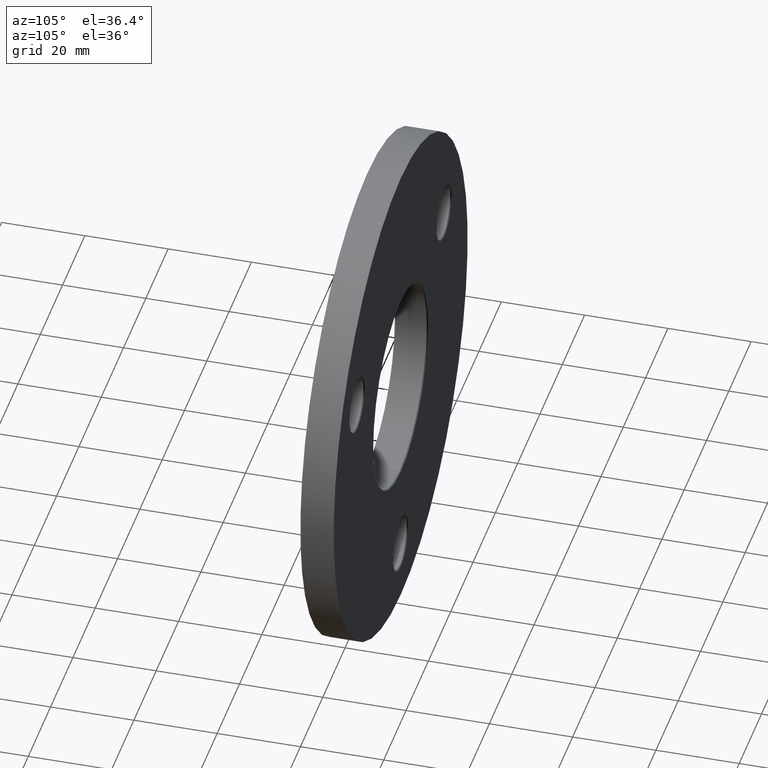
[diagram: clean part render]
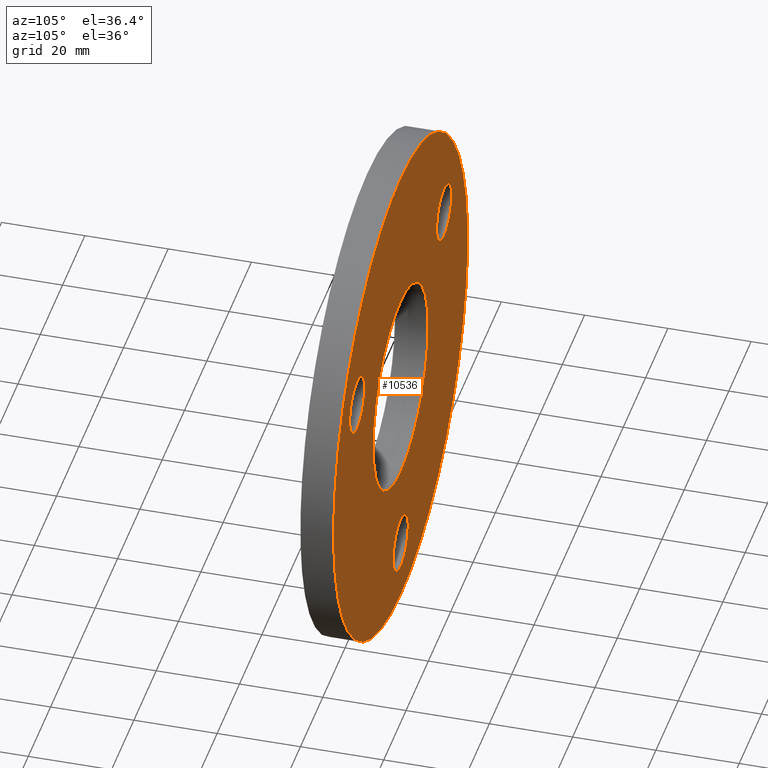
[diagram: same view with one face highlighted and labeled with its STEP entity id]
A machine part, auxiliary view. The second image highlights one B-rep face of the part: STEP entity #10536.
In plain terms, the highlighted planar face has unit normal (0, 1, 0).
Its self-contained STEP definition (entity closure, byte-faithful):
#160 = EDGE_LOOP ( 'NONE', ( #13259, #6067 ) ) ;
#218 = VERTEX_POINT ( 'NONE', #2078 ) ;
#257 = CARTESIAN_POINT ( 'NONE',  ( 38.97114317029974728, 8.000000000000000000, 29.25000000000003197 ) ) ;
#303 = FACE_BOUND ( 'NONE', #1975, .T. ) ;
#555 = DIRECTION ( 'NONE',  ( 0.000000000000000000, 0.000000000000000000, 1.000000000000000000 ) ) ;
#644 = DIRECTION ( 'NONE',  ( -0.000000000000000000, -1.000000000000000000, -0.000000000000000000 ) ) ;
#1186 = ORIENTED_EDGE ( 'NONE', *, *, #4586, .T. ) ;
#1292 = CIRCLE ( 'NONE', #9086, 24.60000000000001208 ) ;
#1337 = ORIENTED_EDGE ( 'NONE', *, *, #8720, .T. ) ;
#1714 = DIRECTION ( 'NONE',  ( -0.000000000000000000, -1.000000000000000000, -0.000000000000000000 ) ) ;
#1811 = CIRCLE ( 'NONE', #12642, 6.750000000000033751 ) ;
#1822 = AXIS2_PLACEMENT_3D ( 'NONE', #11811, #7621, #10829 ) ;
#1894 = DIRECTION ( 'NONE',  ( 0.000000000000000000, 0.000000000000000000, 1.000000000000000000 ) ) ;
#1926 = CARTESIAN_POINT ( 'NONE',  ( 0.000000000000000000, 8.000000000000000000, -45.00000000000000000 ) ) ;
#1941 = CIRCLE ( 'NONE', #12902, 6.750000000000033751 ) ;
#1975 = EDGE_LOOP ( 'NONE', ( #1337, #7029 ) ) ;
#2078 = CARTESIAN_POINT ( 'NONE',  ( 38.97114317029974728, 8.000000000000000000, 15.74999999999996625 ) ) ;
#2281 = AXIS2_PLACEMENT_3D ( 'NONE', #4577, #3531, #2429 ) ;
#2429 = DIRECTION ( 'NONE',  ( 0.000000000000000000, -0.000000000000000000, 1.000000000000000000 ) ) ;
#2501 = CIRCLE ( 'NONE', #1822, 60.00000000000000000 ) ;
#2978 = DIRECTION ( 'NONE',  ( 0.000000000000000000, 0.000000000000000000, 1.000000000000000000 ) ) ;
#3308 = AXIS2_PLACEMENT_3D ( 'NONE', #5045, #5094, #5980 ) ;
#3380 = VERTEX_POINT ( 'NONE', #4708 ) ;
#3448 = ORIENTED_EDGE ( 'NONE', *, *, #4710, .T. ) ;
#3488 = AXIS2_PLACEMENT_3D ( 'NONE', #13132, #6974, #10117 ) ;
#3531 = DIRECTION ( 'NONE',  ( 0.000000000000000000, 1.000000000000000000, 0.000000000000000000 ) ) ;
#3719 = FACE_BOUND ( 'NONE', #7849, .T. ) ;
#3914 = CIRCLE ( 'NONE', #3308, 24.60000000000001208 ) ;
#4071 = VERTEX_POINT ( 'NONE', #5741 ) ;
#4115 = AXIS2_PLACEMENT_3D ( 'NONE', #8830, #6812, #7954 ) ;
#4435 = VERTEX_POINT ( 'NONE', #7751 ) ;
#4489 = PLANE ( 'NONE',  #2281 ) ;
#4577 = CARTESIAN_POINT ( 'NONE',  ( 0.000000000000000000, 8.000000000000000000, 0.000000000000000000 ) ) ;
#4586 = EDGE_CURVE ( 'NONE', #5088, #4817, #1292, .T. ) ;
#4699 = DIRECTION ( 'NONE',  ( 0.000000000000000000, 1.000000000000000000, 0.000000000000000000 ) ) ;
#4708 = CARTESIAN_POINT ( 'NONE',  ( -38.97114317029973307, 8.000000000000000000, 29.25000000000005329 ) ) ;
#4710 = EDGE_CURVE ( 'NONE', #4817, #5088, #3914, .T. ) ;
#4726 = EDGE_CURVE ( 'NONE', #218, #11201, #6492, .T. ) ;
#4817 = VERTEX_POINT ( 'NONE', #10421 ) ;
#5045 = CARTESIAN_POINT ( 'NONE',  ( 0.000000000000000000, 8.000000000000000000, 0.000000000000000000 ) ) ;
#5088 = VERTEX_POINT ( 'NONE', #7994 ) ;
#5093 = DIRECTION ( 'NONE',  ( -0.000000000000000000, -1.000000000000000000, -0.000000000000000000 ) ) ;
#5094 = DIRECTION ( 'NONE',  ( -0.000000000000000000, -1.000000000000000000, -0.000000000000000000 ) ) ;
#5260 = EDGE_LOOP ( 'NONE', ( #5894, #9468 ) ) ;
#5477 = VERTEX_POINT ( 'NONE', #9087 ) ;
#5718 = VERTEX_POINT ( 'NONE', #9456 ) ;
#5741 = CARTESIAN_POINT ( 'NONE',  ( 0.000000000000000000, 8.000000000000000000, -60.00000000000000000 ) ) ;
#5849 = AXIS2_PLACEMENT_3D ( 'NONE', #12923, #4699, #10787 ) ;
#5894 = ORIENTED_EDGE ( 'NONE', *, *, #6362, .T. ) ;
#5980 = DIRECTION ( 'NONE',  ( 0.000000000000000000, 0.000000000000000000, 1.000000000000000000 ) ) ;
#6067 = ORIENTED_EDGE ( 'NONE', *, *, #8526, .T. ) ;
#6079 = CARTESIAN_POINT ( 'NONE',  ( -38.97114317029973307, 8.000000000000000000, 22.50000000000002132 ) ) ;
#6362 = EDGE_CURVE ( 'NONE', #3380, #5718, #1811, .T. ) ;
#6492 = CIRCLE ( 'NONE', #3488, 6.750000000000033751 ) ;
#6566 = ORIENTED_EDGE ( 'NONE', *, *, #8236, .T. ) ;
#6641 = EDGE_LOOP ( 'NONE', ( #6566, #8281 ) ) ;
#6772 = FACE_BOUND ( 'NONE', #5260, .T. ) ;
#6812 = DIRECTION ( 'NONE',  ( -0.000000000000000000, -1.000000000000000000, -0.000000000000000000 ) ) ;
#6935 = EDGE_CURVE ( 'NONE', #5477, #4435, #1941, .T. ) ;
#6974 = DIRECTION ( 'NONE',  ( -0.000000000000000000, -1.000000000000000000, -0.000000000000000000 ) ) ;
#7029 = ORIENTED_EDGE ( 'NONE', *, *, #4726, .T. ) ;
#7066 = CARTESIAN_POINT ( 'NONE',  ( 38.97114317029974728, 8.000000000000000000, 22.50000000000000000 ) ) ;
#7370 = CARTESIAN_POINT ( 'NONE',  ( 7.347880794884118356E-15, 8.000000000000000000, 60.00000000000000000 ) ) ;
#7437 = FACE_BOUND ( 'NONE', #160, .T. ) ;
#7598 = VERTEX_POINT ( 'NONE', #7370 ) ;
#7621 = DIRECTION ( 'NONE',  ( 0.000000000000000000, 1.000000000000000000, 0.000000000000000000 ) ) ;
#7625 = CIRCLE ( 'NONE', #7744, 6.750000000000033751 ) ;
#7744 = AXIS2_PLACEMENT_3D ( 'NONE', #7066, #5093, #12236 ) ;
#7751 = CARTESIAN_POINT ( 'NONE',  ( 8.266365894244675749E-16, 8.000000000000000000, -51.75000000000003553 ) ) ;
#7786 = EDGE_CURVE ( 'NONE', #5718, #3380, #10022, .T. ) ;
#7849 = EDGE_LOOP ( 'NONE', ( #1186, #3448 ) ) ;
#7889 = DIRECTION ( 'NONE',  ( 0.000000000000000000, 0.000000000000000000, 1.000000000000000000 ) ) ;
#7948 = CIRCLE ( 'NONE', #11157, 6.750000000000033751 ) ;
#7954 = DIRECTION ( 'NONE',  ( 0.000000000000000000, 0.000000000000000000, 1.000000000000000000 ) ) ;
#7994 = CARTESIAN_POINT ( 'NONE',  ( 0.000000000000000000, 8.000000000000000000, 24.60000000000001208 ) ) ;
#8107 = DIRECTION ( 'NONE',  ( -0.000000000000000000, -1.000000000000000000, -0.000000000000000000 ) ) ;
#8236 = EDGE_CURVE ( 'NONE', #4071, #7598, #9386, .T. ) ;
#8281 = ORIENTED_EDGE ( 'NONE', *, *, #13318, .T. ) ;
#8526 = EDGE_CURVE ( 'NONE', #4435, #5477, #7948, .T. ) ;
#8720 = EDGE_CURVE ( 'NONE', #11201, #218, #7625, .T. ) ;
#8811 = CARTESIAN_POINT ( 'NONE',  ( 0.000000000000000000, 8.000000000000000000, 0.000000000000000000 ) ) ;
#8830 = CARTESIAN_POINT ( 'NONE',  ( -38.97114317029973307, 8.000000000000000000, 22.50000000000002132 ) ) ;
#9086 = AXIS2_PLACEMENT_3D ( 'NONE', #8811, #644, #7889 ) ;
#9087 = CARTESIAN_POINT ( 'NONE',  ( 0.000000000000000000, 8.000000000000000000, -38.24999999999996447 ) ) ;
#9162 = DIRECTION ( 'NONE',  ( -0.000000000000000000, -1.000000000000000000, -0.000000000000000000 ) ) ;
#9386 = CIRCLE ( 'NONE', #5849, 60.00000000000000000 ) ;
#9456 = CARTESIAN_POINT ( 'NONE',  ( -38.97114317029973307, 8.000000000000000000, 15.74999999999998579 ) ) ;
#9468 = ORIENTED_EDGE ( 'NONE', *, *, #7786, .T. ) ;
#9940 = CARTESIAN_POINT ( 'NONE',  ( 0.000000000000000000, 8.000000000000000000, -45.00000000000000000 ) ) ;
#10022 = CIRCLE ( 'NONE', #4115, 6.750000000000033751 ) ;
#10117 = DIRECTION ( 'NONE',  ( 0.000000000000000000, 0.000000000000000000, 1.000000000000000000 ) ) ;
#10421 = CARTESIAN_POINT ( 'NONE',  ( 3.012631125902490009E-15, 8.000000000000000000, -24.60000000000001208 ) ) ;
#10536 = ADVANCED_FACE ( 'NONE', ( #3719, #303, #6772, #7437, #12568 ), #4489, .T. ) ;
#10787 = DIRECTION ( 'NONE',  ( 0.000000000000000000, 0.000000000000000000, 1.000000000000000000 ) ) ;
#10829 = DIRECTION ( 'NONE',  ( 0.000000000000000000, 0.000000000000000000, 1.000000000000000000 ) ) ;
#11157 = AXIS2_PLACEMENT_3D ( 'NONE', #9940, #1714, #555 ) ;
#11201 = VERTEX_POINT ( 'NONE', #257 ) ;
#11811 = CARTESIAN_POINT ( 'NONE',  ( 0.000000000000000000, 8.000000000000000000, 0.000000000000000000 ) ) ;
#12236 = DIRECTION ( 'NONE',  ( 0.000000000000000000, 0.000000000000000000, 1.000000000000000000 ) ) ;
#12568 = FACE_OUTER_BOUND ( 'NONE', #6641, .T. ) ;
#12642 = AXIS2_PLACEMENT_3D ( 'NONE', #6079, #8107, #1894 ) ;
#12902 = AXIS2_PLACEMENT_3D ( 'NONE', #1926, #9162, #2978 ) ;
#12923 = CARTESIAN_POINT ( 'NONE',  ( 0.000000000000000000, 8.000000000000000000, 0.000000000000000000 ) ) ;
#13132 = CARTESIAN_POINT ( 'NONE',  ( 38.97114317029974728, 8.000000000000000000, 22.50000000000000000 ) ) ;
#13259 = ORIENTED_EDGE ( 'NONE', *, *, #6935, .T. ) ;
#13318 = EDGE_CURVE ( 'NONE', #7598, #4071, #2501, .T. ) ;